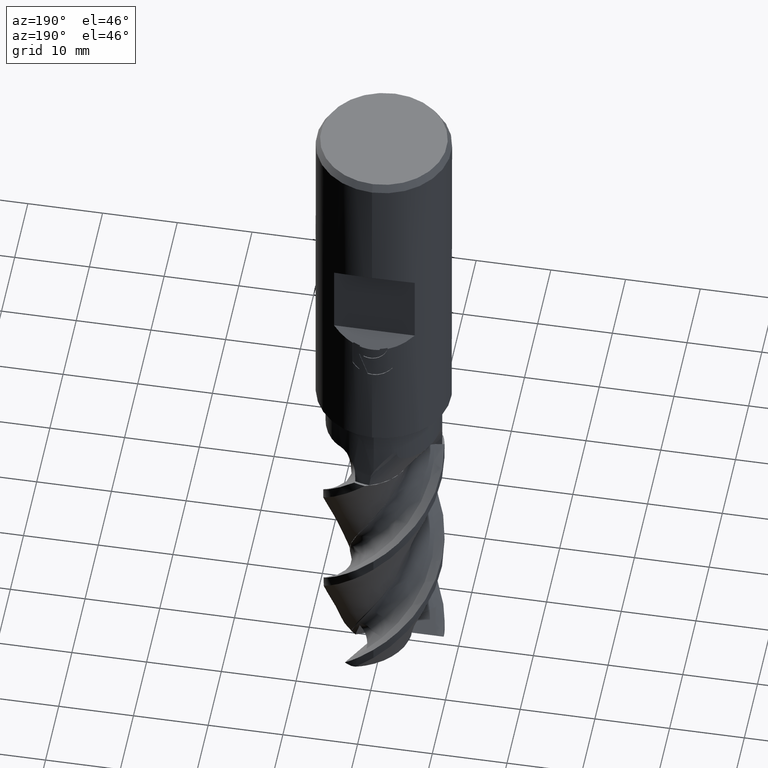
[diagram: clean part render]
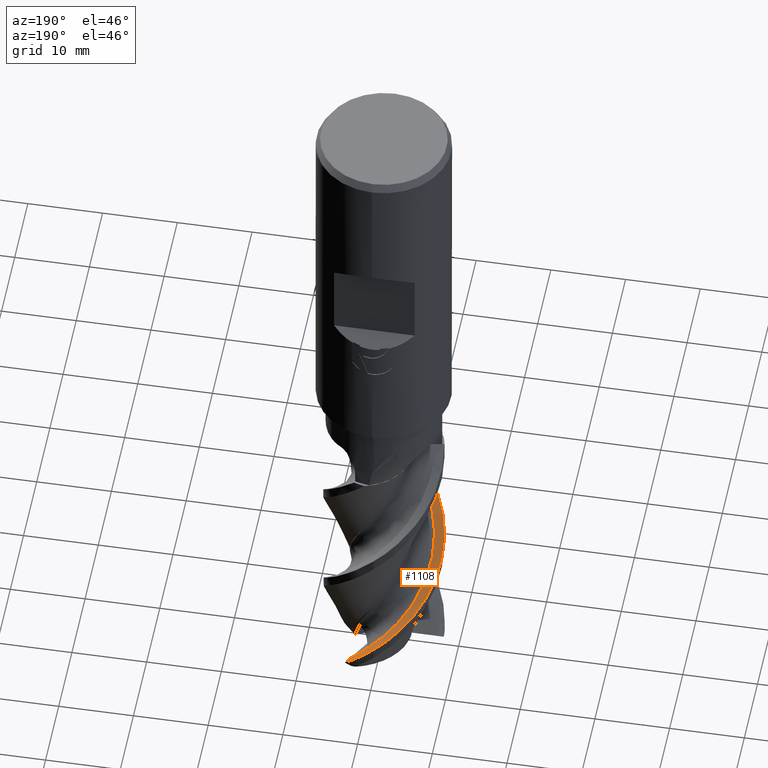
[diagram: same view with one face highlighted and labeled with its STEP entity id]
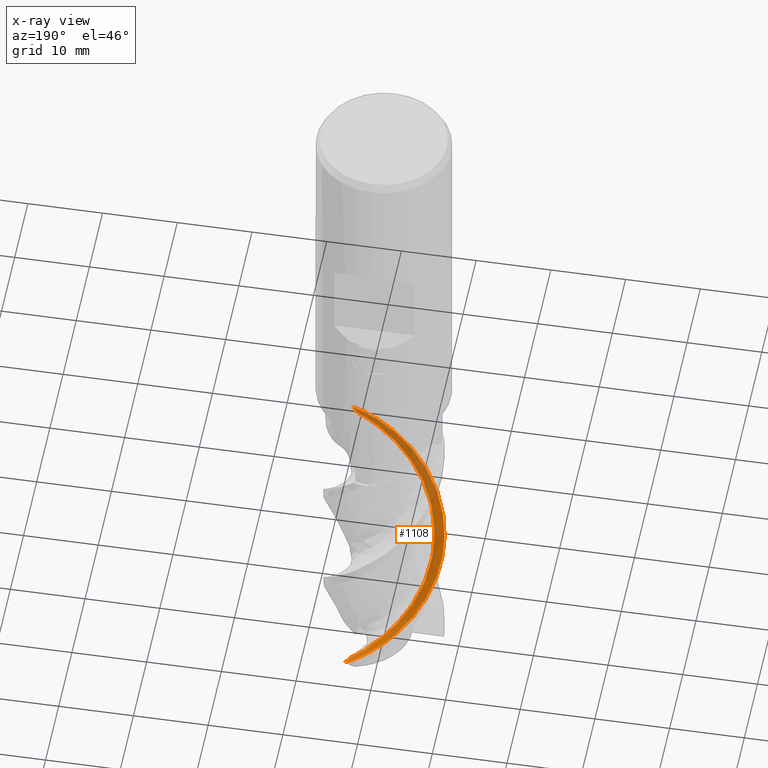
[diagram: x-ray of the same camera — body ghosted, the highlighted face saturated]
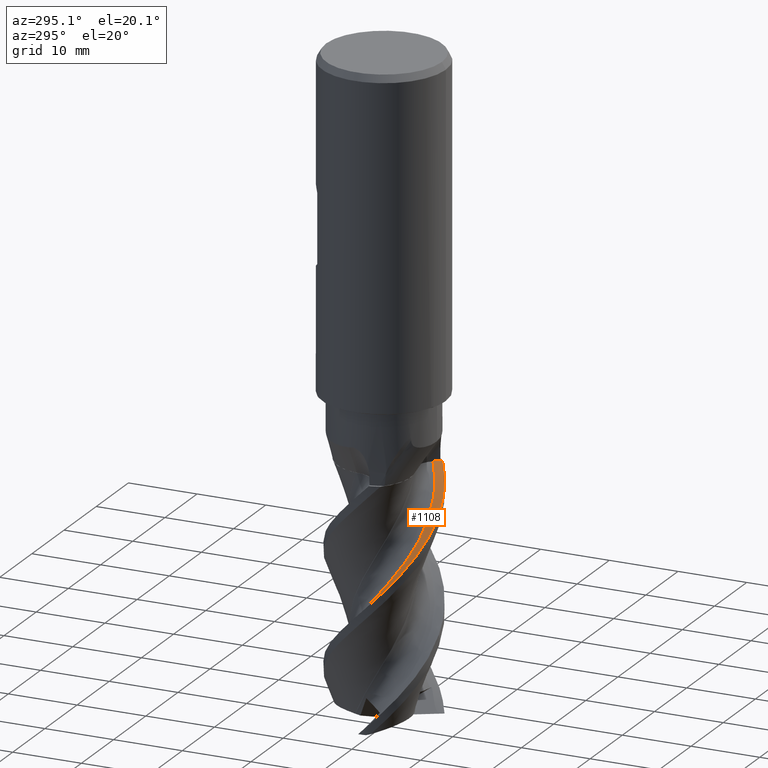
[diagram: same view with one face highlighted and labeled with its STEP entity id]
A machine part, auxiliary view. The second image highlights one B-rep face of the part: STEP entity #1108.
The next image is the same camera in x-ray: the body ghosted, the highlighted face saturated — about 36% of this face is hidden behind the body in this view.
A second angle (auxiliary view) of the same face is appended — the face is thin or edge-on in the first view.
In plain terms, the highlighted face is a freeform B-spline surface patch.
Its self-contained STEP definition (entity closure, byte-faithful):
#630=VERTEX_POINT('',#1577);
#640=VERTEX_POINT('',#1588);
#656=EDGE_CURVE('',#1400,#922,#1604,.T.);
#770=EDGE_CURVE('',#630,#640,#1733,.T.);
#784=EDGE_CURVE('',#640,#1032,#1748,.T.);
#922=VERTEX_POINT('',#1894);
#1000=EDGE_CURVE('',#1120,#1388,#1979,.T.);
#1032=VERTEX_POINT('',#2015);
#1078=EDGE_CURVE('',#1032,#1400,#2062,.T.);
#1094=EDGE_CURVE('',#1388,#630,#2079,.T.);
#1108=ADVANCED_FACE('',(#2094),#2095,.T.);
#1120=VERTEX_POINT('',#2108);
#1320=EDGE_CURVE('',#922,#1120,#2327,.T.);
#1388=VERTEX_POINT('',#2401);
#1400=VERTEX_POINT('',#2413);
#1577=CARTESIAN_POINT('',(5.21287245681162,-6.06830789916059,-58.0));
#1588=CARTESIAN_POINT('',(-1.03411050012735E-010,-7.99991616271667,-63.6569508349699));
#1604=B_SPLINE_CURVE_WITH_KNOTS('',3,(#3688,#3689,#3690,#3691,#3692,#3693,#3694,#3695,#3696,#3697,#3698,#3699,#3700,#3701,#3702,#3703,#3704,#3705,#3706,#3707,#3708,#3709,#3710,#3711,#3712,#3713,#3714,#3715),.UNSPECIFIED.,.F.,.F.,(4,2,2,2,2,2,2,2,2,2,2,2,2,4),(0.0,1.67835538516892,2.3566546700699,3.17270671282474,3.71500186051886,3.79494321817266,3.84522547322926,3.891041552546,3.95042247576357,4.07580516751285,4.3836392117366,4.70856670973003,5.27016585362273,6.07155568821283),.UNSPECIFIED.);
#1733=B_SPLINE_CURVE_WITH_KNOTS('',3,(#5427,#5428,#5429,#5430,#5431,#5432,#5433,#5434,#5435,#5436,#5437,#5438,#5439,#5440,#5441,#5442,#5443,#5444,#5445,#5446,#5447,#5448,#5449,#5450,#5451,#5452,#5453,#5454,#5455,#5456,#5457,#5458,#5459,#5460,#5461,#5462,#5463,#5464,#5465,#5466,#5467,#5468,#5469,#5470,#5471,#5472,#5473,#5474,#5475,#5476,#5477,#5478,#5479,#5480,#5481,#5482),.UNSPECIFIED.,.F.,.F.,(4,2,2,2,2,2,2,2,2,2,2,2,2,2,2,2,2,2,2,2,2,2,2,2,2,2,2,4),(0.0,0.772038852733028,2.26277068045556,3.75850817420948,6.84197586290785,8.48412515882789,10.2599528205792,11.1546704780016,12.0039494147489,13.167610437912,13.5957750828951,14.466805618371,15.2986539952214,17.4739681601708,18.9030155020527,20.397441263458,21.9245275325108,23.4605335775949,24.9469417560208,28.0462084924273,28.8150537425443,30.2992869692693,33.1166060031483,34.3274682192292,35.6979305971694,38.6270104183647,40.1010453101161,41.5871134167108),.UNSPECIFIED.);
#1748=B_SPLINE_CURVE_WITH_KNOTS('',3,(#5568,#5569,#5570,#5571,#5572,#5573,#5574,#5575,#5576,#5577,#5578,#5579,#5580,#5581,#5582,#5583,#5584,#5585,#5586,#5587,#5588,#5589,#5590,#5591,#5592,#5593,#5594,#5595,#5596,#5597,#5598,#5599,#5600,#5601,#5602,#5603,#5604,#5605,#5606,#5607,#5608,#5609,#5610,#5611,#5612,#5613,#5614,#5615,#5616,#5617,#5618,#5619,#5620,#5621,#5622,#5623),.UNSPECIFIED.,.F.,.F.,(4,2,2,2,2,2,2,2,2,2,2,2,2,2,2,2,2,2,2,2,2,2,2,2,2,2,2,4),(0.0,0.772038852733028,2.26277068045556,3.75850817420948,6.84197586290785,8.48412515882789,10.2599528205792,11.1546704780016,12.0039494147489,13.167610437912,13.5957750828951,14.466805618371,15.2986539952214,17.4739681601708,18.9030155020527,20.397441263458,21.9245275325108,23.4605335775949,24.9469417560208,28.0462084924273,28.8150537425443,30.2992869692693,33.1166060031483,34.3274682192292,35.6979305971694,38.6270104183647,40.1010453101161,41.5871134167108),.UNSPECIFIED.);
#1894=CARTESIAN_POINT('',(1.1541401435588,6.87987760508861,-90.1223507154939));
#1979=B_SPLINE_CURVE_WITH_KNOTS('',3,(#6680,#6681,#6682,#6683,#6684,#6685,#6686,#6687,#6688,#6689,#6690,#6691,#6692,#6693,#6694,#6695,#6696,#6697,#6698,#6699,#6700,#6701,#6702,#6703,#6704,#6705,#6706,#6707,#6708,#6709,#6710,#6711,#6712,#6713,#6714,#6715,#6716,#6717,#6718,#6719,#6720,#6721,#6722,#6723,#6724,#6725,#6726,#6727,#6728,#6729,#6730,#6731,#6732,#6733,#6734,#6735),.UNSPECIFIED.,.F.,.F.,(4,1,1,2,1,2,1,2,1,1,1,2,1,2,1,2,1,2,1,2,1,2,1,2,1,2,1,2,1,2,1,2,1,2,1,2,1,4),(0.0,1.05208028823285,1.57812043234927,2.10416057646569,3.15624086469854,4.20832115293138,6.31248172939707,8.41664230586276,9.46872259409561,10.5208028823285,11.5728831705613,12.6249634587941,14.7291240352598,16.8332846117255,18.9374451881912,21.0416057646569,23.1457663411226,25.2499269175883,27.354087494054,29.4582480705197,31.5624086469854,33.666569223451,35.7707297999167,37.8748903763824,39.9790509528481,42.0832115293138,44.1873721057795,46.2915326822452,48.3956932587109,50.4998538351766,52.6040144116423,54.7081749881079,56.8123355645736,58.9164961410393,61.020656717505,63.1248172939707,65.2289778704364,67.3331384469021),.UNSPECIFIED.);
#2015=CARTESIAN_POINT('',(-2.9487581551055E-014,7.99998796921893,-88.7892266244435));
#2062=B_SPLINE_CURVE_WITH_KNOTS('',3,(#7398,#7399,#7400,#7401,#7402,#7403,#7404,#7405,#7406,#7407,#7408,#7409,#7410,#7411,#7412,#7413,#7414,#7415,#7416,#7417,#7418,#7419,#7420,#7421,#7422,#7423,#7424,#7425,#7426,#7427,#7428,#7429,#7430,#7431,#7432,#7433,#7434,#7435,#7436,#7437,#7438,#7439,#7440,#7441,#7442,#7443,#7444,#7445,#7446,#7447,#7448,#7449,#7450,#7451,#7452,#7453),.UNSPECIFIED.,.F.,.F.,(4,2,2,2,2,2,2,2,2,2,2,2,2,2,2,2,2,2,2,2,2,2,2,2,2,2,2,4),(0.0,0.772038852733028,2.26277068045556,3.75850817420948,6.84197586290785,8.48412515882789,10.2599528205792,11.1546704780016,12.0039494147489,13.167610437912,13.5957750828951,14.466805618371,15.2986539952214,17.4739681601708,18.9030155020527,20.397441263458,21.9245275325108,23.4605335775949,24.9469417560208,28.0462084924273,28.8150537425443,30.2992869692693,33.1166060031483,34.3274682192292,35.6979305971694,38.6270104183647,40.1010453101161,41.5871134167108),.UNSPECIFIED.);
#2079=B_SPLINE_CURVE_WITH_KNOTS('',3,(#7482,#7483,#7484,#7485,#7486,#7487),.UNSPECIFIED.,.F.,.F.,(4,2,4),(0.0,0.813333286227644,1.62666657246357),.UNSPECIFIED.);
#2094=FACE_OUTER_BOUND('',#7550,.T.);
#2095=B_SPLINE_SURFACE_WITH_KNOTS('',3,3,((#7551,#7552,#7553,#7554,#7555,#7556,#7557,#7558,#7559,#7560,#7561,#7562,#7563,#7564,#7565,#7566,#7567,#7568,#7569,#7570,#7571,#7572,#7573,#7574,#7575,#7576,#7577,#7578,#7579,#7580,#7581,#7582,#7583,#7584,#7585,#7586,#7587,#7588,#7589,#7590,#7591,#7592,#7593,#7594,#7595,#7596,#7597,#7598,#7599,#7600,#7601,#7602,#7603,#7604,#7605,#7606,#7607,#7608,#7609,#7610,#7611,#7612,#7613,#7614,#7615,#7616,#7617,#7618,#7619,#7620,#7621,#7622,#7623),(#7624,#7625,#7626,#7627,#7628,#7629,#7630,#7631,#7632,#7633,#7634,#7635,#7636,#7637,#7638,#7639,#7640,#7641,#7642,#7643,#7644,#7645,#7646,#7647,#7648,#7649,#7650,#7651,#7652,#7653,#7654,#7655,#7656,#7657,#7658,#7659,#7660,#7661,#7662,#7663,#7664,#7665,#7666,#7667,#7668,#7669,#7670,#7671,#7672,#7673,#7674,#7675,#7676,#7677,#7678,#7679,#7680,#7681,#7682,#7683,#7684,#7685,#7686,#7687,#7688,#7689,#7690,#7691,#7692,#7693,#7694,#7695,#7696),(#7697,#7698,#7699,#7700,#7701,#7702,#7703,#7704,#7705,#7706,#7707,#7708,#7709,#7710,#7711,#7712,#7713,#7714,#7715,#7716,#7717,#7718,#7719,#7720,#7721,#7722,#7723,#7724,#7725,#7726,#7727,#7728,#7729,#7730,#7731,#7732,#7733,#7734,#7735,#7736,#7737,#7738,#7739,#7740,#7741,#7742,#7743,#7744,#7745,#7746,#7747,#7748,#7749,#7750,#7751,#7752,#7753,#7754,#7755,#7756,#7757,#7758,#7759,#7760,#7761,#7762,#7763,#7764,#7765,#7766,#7767,#7768,#7769),(#7770,#7771,#7772,#7773,#7774,#7775,#7776,#7777,#7778,#7779,#7780,#7781,#7782,#7783,#7784,#7785,#7786,#7787,#7788,#7789,#7790,#7791,#7792,#7793,#7794,#7795,#7796,#7797,#7798,#7799,#7800,#7801,#7802,#7803,#7804,#7805,#7806,#7807,#7808,#7809,#7810,#7811,#7812,#7813,#7814,#7815,#7816,#7817,#7818,#7819,#7820,#7821,#7822,#7823,#7824,#7825,#7826,#7827,#7828,#7829,#7830,#7831,#7832,#7833,#7834,#7835,#7836,#7837,#7838,#7839,#7840,#7841,#7842)),.UNSPECIFIED.,.F.,.F.,.F.,(4,4),(4,1,1,2,1,2,1,1,2,1,1,2,1,1,2,1,1,1,2,1,1,2,1,1,2,1,1,1,2,1,1,2,1,1,2,1,1,1,2,1,1,2,1,1,2,1,1,1,2,1,1,2,1,1,4),(-2.66453525910038E-015,1.62666666666667),(0.0,1.05208028823285,1.57812043234927,2.10416057646569,3.15624086469854,4.20832115293138,6.31248172939707,7.36456201762992,8.41664230586276,9.46872259409561,11.0468430264449,12.6249634587941,14.2030838911434,15.7812043234927,16.8332846117255,17.8853648999584,18.9374451881912,19.9895254764241,21.0416057646569,22.0936860528897,23.671806485239,25.2499269175883,26.8280473499375,28.4061677822868,29.4582480705197,30.5103283587525,31.5624086469854,32.6144889352182,33.666569223451,34.7186495116839,36.2967699440332,37.8748903763824,39.4530108087317,41.031131241081,42.0832115293138,43.1352918175466,44.1873721057795,45.2394523940123,46.2915326822452,47.343612970478,48.9217334028273,50.4998538351766,52.0779742675258,53.6560946998751,54.7081749881079,55.7602552763408,56.8123355645736,57.8644158528065,58.9164961410393,59.9685764292722,61.5466968616214,63.1248172939707,64.70293772632,66.2810581586692,67.3331384469021),.UNSPECIFIED.);
#2108=CARTESIAN_POINT('',(1.158809729653,6.59390413202232,-90.1830418899599));
#2327=B_SPLINE_CURVE_WITH_KNOTS('',3,(#9245,#9246,#9247,#9248,#9249,#9250),.UNSPECIFIED.,.F.,.F.,(4,2,4),(0.0,0.840603293433527,1.68484594407021),.UNSPECIFIED.);
#2401=CARTESIAN_POINT('',(4.35693640078114,-5.0830219495712,-58.0));
#2413=CARTESIAN_POINT('',(3.99025440754666,6.93382061405489,-92.9681683335498));
#3688=CARTESIAN_POINT('',(4.16292513913367,7.2053985141836,-92.9835449078489));
#3689=CARTESIAN_POINT('',(3.86700828204585,6.73108475339664,-92.9624266453463));
#3690=CARTESIAN_POINT('',(3.69381694825055,6.4906645841033,-92.9281862229429));
#3691=CARTESIAN_POINT('',(3.49506378671298,6.30323199335899,-92.836828384556));
#3692=CARTESIAN_POINT('',(3.44070327341712,6.2645199663556,-92.8044546086754));
#3693=CARTESIAN_POINT('',(3.31721271910897,6.20570297847088,-92.7137718357228));
#3694=CARTESIAN_POINT('',(3.24639314065133,6.19056655649715,-92.6508247343057));
#3695=CARTESIAN_POINT('',(3.10925581404169,6.18753343666497,-92.5134681754428));
#3696=CARTESIAN_POINT('',(2.92427565325677,6.19383983085888,-92.322073498125));
#3697=CARTESIAN_POINT('',(2.67992652296489,6.27137130366069,-92.028527830998));
#3698=CARTESIAN_POINT('',(2.64853969627333,6.28222907351468,-91.9902927518187));
#3699=CARTESIAN_POINT('',(2.598442925189,6.30050597507132,-91.928708301374));
#3700=CARTESIAN_POINT('',(2.5791134925711,6.30779273175191,-91.9048082883225));
#3701=CARTESIAN_POINT('',(2.54248226084737,6.32194178174757,-91.8593153153665));
#3702=CARTESIAN_POINT('',(2.52501829880595,6.3288363154897,-91.8375388498595));
#3703=CARTESIAN_POINT('',(2.48518097093675,6.34482625203715,-91.7877096049805));
#3704=CARTESIAN_POINT('',(2.46263745809814,6.35406840785383,-91.7593978311182));
#3705=CARTESIAN_POINT('',(2.39314110225659,6.38297464739032,-91.6718751548589));
#3706=CARTESIAN_POINT('',(2.34445689908999,6.40383328942792,-91.610204618568));
#3707=CARTESIAN_POINT('',(2.18469884830795,6.47296523559024,-91.4074292006788));
#3708=CARTESIAN_POINT('',(2.0560326754733,6.52989917127943,-91.2433783048335));
#3709=CARTESIAN_POINT('',(1.77948411261176,6.64742824372244,-90.8936249296246));
#3710=CARTESIAN_POINT('',(1.6431916162499,6.70294203024698,-90.7226719838824));
#3711=CARTESIAN_POINT('',(1.25384843556218,6.8503232003522,-90.2409082830239));
#3712=CARTESIAN_POINT('',(1.00812814058398,6.93138999569969,-89.9438909533161));
#3713=CARTESIAN_POINT('',(0.387238302607882,7.10019786296531,-89.2145875802002));
#3714=CARTESIAN_POINT('',(0.0147454799016312,7.1721784880227,-88.7942920508133));
#3715=CARTESIAN_POINT('',(-0.37154686110601,7.21595011336617,-88.3765957082315));
#5427=CARTESIAN_POINT('',(5.21287245681161,-6.0683078991606,-58.0));
#5428=CARTESIAN_POINT('',(5.07461420348401,-6.1870768880101,-58.1816746891805));
#5429=CARTESIAN_POINT('',(4.93181919450846,-6.30153223722073,-58.3627758454504));
#5430=CARTESIAN_POINT('',(4.50040776259153,-6.62348386405689,-58.8911325221385));
#5431=CARTESIAN_POINT('',(4.20281166598624,-6.81653972458409,-59.2367434570634));
#5432=CARTESIAN_POINT('',(3.57056734552407,-7.16804008567893,-59.9594092558823));
#5433=CARTESIAN_POINT('',(3.2434723093854,-7.32173336295843,-60.3240979884889));
#5434=CARTESIAN_POINT('',(2.2175963641665,-7.72209083434428,-61.4397738932901));
#5435=CARTESIAN_POINT('',(1.48539506143808,-7.89715058456038,-62.1965772008083));
#5436=CARTESIAN_POINT('',(0.330363504131069,-8.003247024313,-63.3274144834511));
#5437=CARTESIAN_POINT('',(-0.231634571805196,-8.02561708327625,-63.8828640598434));
#5438=CARTESIAN_POINT('',(-1.64254237700218,-7.86417060153799,-65.3192488999623));
#5439=CARTESIAN_POINT('',(-2.36591256961914,-7.6786330222183,-66.0738828742407));
#5440=CARTESIAN_POINT('',(-3.40600724703285,-7.2484573147421,-67.1824739921492));
#5441=CARTESIAN_POINT('',(-3.74175193525708,-7.08120588308232,-67.5461768571065));
#5442=CARTESIAN_POINT('',(-4.38152265326105,-6.70314024777973,-68.2878660342584));
#5443=CARTESIAN_POINT('',(-4.67902523383861,-6.4988146111824,-68.6518503565657));
#5444=CARTESIAN_POINT('',(-5.34683020445345,-5.97096981610873,-69.5141407845249));
#5445=CARTESIAN_POINT('',(-5.705433290114,-5.62964771887398,-70.0147996742046));
#5446=CARTESIAN_POINT('',(-6.15113608894304,-5.11818358860029,-70.6918407661981));
#5447=CARTESIAN_POINT('',(-6.26671617867258,-4.97604796832046,-70.8734001731296));
#5448=CARTESIAN_POINT('',(-6.60347265108036,-4.53133867937444,-71.421837323282));
#5449=CARTESIAN_POINT('',(-6.80756371669994,-4.21901189845677,-71.7845195431684));
#5450=CARTESIAN_POINT('',(-7.16800876447135,-3.57071553532728,-72.5256401461329));
#5451=CARTESIAN_POINT('',(-7.3217313295745,-3.24357244075584,-72.8904204147805));
#5452=CARTESIAN_POINT('',(-7.79456273616454,-2.03200316282841,-74.2081070343657));
#5453=CARTESIAN_POINT('',(-7.91727554160246,-1.26690322656766,-74.976853567706));
#5454=CARTESIAN_POINT('',(-7.99873846146683,-0.379702032907552,-75.8453926822159));
#5455=CARTESIAN_POINT('',(-8.00747510085222,-0.0287932507852192,-76.193185230559));
#5456=CARTESIAN_POINT('',(-7.97905843022135,0.683003881425005,-76.9078037130734));
#5457=CARTESIAN_POINT('',(-7.93974456529791,1.04449364503008,-77.2756005160814));
#5458=CARTESIAN_POINT('',(-7.81146545192826,1.76560212245884,-78.0178226513432));
#5459=CARTESIAN_POINT('',(-7.72120336209989,2.12630493594665,-78.393464641485));
#5460=CARTESIAN_POINT('',(-7.48947553444422,2.83682408845469,-79.1412948257793));
#5461=CARTESIAN_POINT('',(-7.35079740692454,3.17802670713963,-79.5010759194396));
#5462=CARTESIAN_POINT('',(-7.03414183993346,3.82706142057121,-80.2092056396429));
#5463=CARTESIAN_POINT('',(-6.85838396363816,4.13338592851271,-80.5608076429401));
#5464=CARTESIAN_POINT('',(-6.2601563464703,5.03429641869908,-81.6491623752296));
#5465=CARTESIAN_POINT('',(-5.77321781492997,5.58653081576333,-82.3961093382278));
#5466=CARTESIAN_POINT('',(-5.07793236450458,6.18444684808674,-83.310119151131));
#5467=CARTESIAN_POINT('',(-4.935195801889,6.29897933411213,-83.4912197087168));
#5468=CARTESIAN_POINT('',(-4.50401553208408,6.62111370380035,-84.019502229066));
#5469=CARTESIAN_POINT('',(-4.20651012959346,6.81434076727707,-84.3652505333912));
#5470=CARTESIAN_POINT('',(-3.2922202376133,7.32329421072124,-85.4107429178795));
#5471=CARTESIAN_POINT('',(-2.65432074333019,7.57760773557075,-86.1073343076375));
#5472=CARTESIAN_POINT('',(-1.70919699051024,7.82076928205759,-87.0898573012098));
#5473=CARTESIAN_POINT('',(-1.41988040437261,7.87854631908545,-87.3844042733546));
#5474=CARTESIAN_POINT('',(-0.794464802010979,7.96750148371538,-88.0077909761143));
#5475=CARTESIAN_POINT('',(-0.463428758700344,7.99367199480728,-88.3287587001145));
#5476=CARTESIAN_POINT('',(0.594650538175004,8.01036434453721,-89.3796330384049));
#5477=CARTESIAN_POINT('',(1.31047767513729,7.92420917257543,-90.1104953810253));
#5478=CARTESIAN_POINT('',(2.35042512963681,7.65537218939675,-91.1948863382679));
#5479=CARTESIAN_POINT('',(2.69416180287909,7.54147609279439,-91.5570905076442));
#5480=CARTESIAN_POINT('',(3.37048582907388,7.26459901035863,-92.277658155736));
#5481=CARTESIAN_POINT('',(3.69768445643631,7.1038195992089,-92.6309160701171));
#5482=CARTESIAN_POINT('',(4.0179150375871,6.91782904896698,-93.0));
#5568=CARTESIAN_POINT('',(5.21287245681161,-6.0683078991606,-58.0));
#5569=CARTESIAN_POINT('',(5.07461420348401,-6.1870768880101,-58.1816746891805));
#5570=CARTESIAN_POINT('',(4.93181919450846,-6.30153223722073,-58.3627758454504));
#5571=CARTESIAN_POINT('',(4.50040776259153,-6.62348386405689,-58.8911325221385));
#5572=CARTESIAN_POINT('',(4.20281166598624,-6.81653972458409,-59.2367434570634));
#5573=CARTESIAN_POINT('',(3.57056734552407,-7.16804008567893,-59.9594092558823));
#5574=CARTESIAN_POINT('',(3.2434723093854,-7.32173336295843,-60.3240979884889));
#5575=CARTESIAN_POINT('',(2.2175963641665,-7.72209083434428,-61.4397738932901));
#5576=CARTESIAN_POINT('',(1.48539506143808,-7.89715058456038,-62.1965772008083));
#5577=CARTESIAN_POINT('',(0.330363504131069,-8.003247024313,-63.3274144834511));
#5578=CARTESIAN_POINT('',(-0.231634571805196,-8.02561708327625,-63.8828640598434));
#5579=CARTESIAN_POINT('',(-1.64254237700218,-7.86417060153799,-65.3192488999623));
#5580=CARTESIAN_POINT('',(-2.36591256961914,-7.6786330222183,-66.0738828742407));
#5581=CARTESIAN_POINT('',(-3.40600724703285,-7.2484573147421,-67.1824739921492));
#5582=CARTESIAN_POINT('',(-3.74175193525708,-7.08120588308232,-67.5461768571065));
#5583=CARTESIAN_POINT('',(-4.38152265326105,-6.70314024777973,-68.2878660342584));
#5584=CARTESIAN_POINT('',(-4.67902523383861,-6.4988146111824,-68.6518503565657));
#5585=CARTESIAN_POINT('',(-5.34683020445345,-5.97096981610873,-69.5141407845249));
#5586=CARTESIAN_POINT('',(-5.705433290114,-5.62964771887398,-70.0147996742046));
#5587=CARTESIAN_POINT('',(-6.15113608894304,-5.11818358860029,-70.6918407661981));
#5588=CARTESIAN_POINT('',(-6.26671617867258,-4.97604796832046,-70.8734001731296));
#5589=CARTESIAN_POINT('',(-6.60347265108036,-4.53133867937444,-71.421837323282));
#5590=CARTESIAN_POINT('',(-6.80756371669994,-4.21901189845677,-71.7845195431684));
#5591=CARTESIAN_POINT('',(-7.16800876447135,-3.57071553532728,-72.5256401461329));
#5592=CARTESIAN_POINT('',(-7.3217313295745,-3.24357244075584,-72.8904204147805));
#5593=CARTESIAN_POINT('',(-7.79456273616454,-2.03200316282841,-74.2081070343657));
#5594=CARTESIAN_POINT('',(-7.91727554160246,-1.26690322656766,-74.976853567706));
#5595=CARTESIAN_POINT('',(-7.99873846146683,-0.379702032907552,-75.8453926822159));
#5596=CARTESIAN_POINT('',(-8.00747510085222,-0.0287932507852192,-76.193185230559));
#5597=CARTESIAN_POINT('',(-7.97905843022135,0.683003881425005,-76.9078037130734));
#5598=CARTESIAN_POINT('',(-7.93974456529791,1.04449364503008,-77.2756005160814));
#5599=CARTESIAN_POINT('',(-7.81146545192826,1.76560212245884,-78.0178226513432));
#5600=CARTESIAN_POINT('',(-7.72120336209989,2.12630493594665,-78.393464641485));
#5601=CARTESIAN_POINT('',(-7.48947553444422,2.83682408845469,-79.1412948257793));
#5602=CARTESIAN_POINT('',(-7.35079740692454,3.17802670713963,-79.5010759194396));
#5603=CARTESIAN_POINT('',(-7.03414183993346,3.82706142057121,-80.2092056396429));
#5604=CARTESIAN_POINT('',(-6.85838396363816,4.13338592851271,-80.5608076429401));
#5605=CARTESIAN_POINT('',(-6.2601563464703,5.03429641869908,-81.6491623752296));
#5606=CARTESIAN_POINT('',(-5.77321781492997,5.58653081576333,-82.3961093382278));
#5607=CARTESIAN_POINT('',(-5.07793236450458,6.18444684808674,-83.310119151131));
#5608=CARTESIAN_POINT('',(-4.935195801889,6.29897933411213,-83.4912197087168));
#5609=CARTESIAN_POINT('',(-4.50401553208408,6.62111370380035,-84.019502229066));
#5610=CARTESIAN_POINT('',(-4.20651012959346,6.81434076727707,-84.3652505333912));
#5611=CARTESIAN_POINT('',(-3.2922202376133,7.32329421072124,-85.4107429178795));
#5612=CARTESIAN_POINT('',(-2.65432074333019,7.57760773557075,-86.1073343076375));
#5613=CARTESIAN_POINT('',(-1.70919699051024,7.82076928205759,-87.0898573012098));
#5614=CARTESIAN_POINT('',(-1.41988040437261,7.87854631908545,-87.3844042733546));
#5615=CARTESIAN_POINT('',(-0.794464802010979,7.96750148371538,-88.0077909761143));
#5616=CARTESIAN_POINT('',(-0.463428758700344,7.99367199480728,-88.3287587001145));
#5617=CARTESIAN_POINT('',(0.594650538175004,8.01036434453721,-89.3796330384049));
#5618=CARTESIAN_POINT('',(1.31047767513729,7.92420917257543,-90.1104953810253));
#5619=CARTESIAN_POINT('',(2.35042512963681,7.65537218939675,-91.1948863382679));
#5620=CARTESIAN_POINT('',(2.69416180287909,7.54147609279439,-91.5570905076442));
#5621=CARTESIAN_POINT('',(3.37048582907388,7.26459901035863,-92.277658155736));
#5622=CARTESIAN_POINT('',(3.69768445643631,7.1038195992089,-92.6309160701171));
#5623=CARTESIAN_POINT('',(4.0179150375871,6.91782904896698,-93.0));
#6680=CARTESIAN_POINT('',(4.20393343057443,-5.20842152887128,-109.0));
#6681=CARTESIAN_POINT('',(4.2327569364535,-5.18770676173068,-108.651072579115));
#6682=CARTESIAN_POINT('',(4.37210942386088,-5.08115795134762,-108.127524460477));
#6683=CARTESIAN_POINT('',(4.72810084294036,-4.74936733186022,-107.429428629351));
#6684=CARTESIAN_POINT('',(4.95280516145507,-4.509858032656,-107.080456256324));
#6685=CARTESIAN_POINT('',(5.31277601831702,-4.08916229063718,-106.55713254818));
#6686=CARTESIAN_POINT('',(5.71177978250961,-3.53261093701815,-105.859425673904));
#6687=CARTESIAN_POINT('',(5.98773131580511,-3.00629572243662,-105.161585973117));
#6688=CARTESIAN_POINT('',(6.3352587746281,-2.23740279871492,-104.114596902642));
#6689=CARTESIAN_POINT('',(6.66521876447401,-1.16828111023206,-102.71862421018));
#6690=CARTESIAN_POINT('',(6.72252898855741,-0.00156635318938125,-101.322690176022));
#6691=CARTESIAN_POINT('',(6.64024956359397,0.904592384329494,-100.275884146031));
#6692=CARTESIAN_POINT('',(6.54604829549585,1.49151641357964,-99.5780260148535));
#6693=CARTESIAN_POINT('',(6.29826741099838,2.324249585942,-98.5312100898291));
#6694=CARTESIAN_POINT('',(5.94706801753991,3.11563952025638,-97.4843401699208));
#6695=CARTESIAN_POINT('',(5.6408314287081,3.61820626390876,-96.786401149683));
#6696=CARTESIAN_POINT('',(5.12237394047264,4.35185396637235,-95.7395013984771));
#6697=CARTESIAN_POINT('',(4.32921633669531,5.20245129156445,-94.3436952715741));
#6698=CARTESIAN_POINT('',(3.34860523708186,5.82813958796562,-92.9478102200316));
#6699=CARTESIAN_POINT('',(2.26042962557328,6.32993618000278,-91.5519840884215));
#6700=CARTESIAN_POINT('',(1.14950462425697,6.669606801992,-90.1562051408592));
#6701=CARTESIAN_POINT('',(-0.0115664169324514,6.72168031749608,-88.7603200213329));
#6702=CARTESIAN_POINT('',(-1.20571668238585,6.61243641628123,-87.3644844988753));
#6703=CARTESIAN_POINT('',(-2.3386296185814,6.35112789861651,-85.9687002621039));
#6704=CARTESIAN_POINT('',(-3.37043320609694,5.81557903550243,-84.5728156846214));
#6705=CARTESIAN_POINT('',(-4.34977727086311,5.12418820151481,-83.1769815968081));
#6706=CARTESIAN_POINT('',(-5.20015142038503,4.3317612987463,-81.7811979629785));
#6707=CARTESIAN_POINT('',(-5.82608398216311,3.35225320755387,-80.3853131393637));
#6708=CARTESIAN_POINT('',(-6.32872848418493,2.26387148226729,-78.9894788521544));
#6709=CARTESIAN_POINT('',(-6.66915721031107,1.15244317693621,-77.5936951817152));
#6710=CARTESIAN_POINT('',(-6.72166403464493,-0.00879376187517344,-76.1978105539307));
#6711=CARTESIAN_POINT('',(-6.61297832230562,-1.20267071792945,-74.8019764943249));
#6712=CARTESIAN_POINT('',(-6.35228421286002,-2.33543952575756,-73.4061928355971));
#6713=CARTESIAN_POINT('',(-5.81728801399451,-3.3674963158014,-72.0103080222112));
#6714=CARTESIAN_POINT('',(-5.1263194322842,-4.34727190228128,-70.6144738481807));
#6715=CARTESIAN_POINT('',(-4.33424752532164,-5.19808432191818,-69.2186902821856));
#6716=CARTESIAN_POINT('',(-3.3550306002753,-5.82448338707021,-67.8228055229385));
#6717=CARTESIAN_POINT('',(-2.26690750555854,-6.32764089281304,-66.4269711661075));
#6718=CARTESIAN_POINT('',(-1.1556608896409,-6.6685984195288,-65.0311874305366));
#6719=CARTESIAN_POINT('',(0.00552809584414682,-6.72166682805072,-63.6353027628009));
#6720=CARTESIAN_POINT('',(1.19943290705249,-6.61356518052475,-62.239468670901));
#6721=CARTESIAN_POINT('',(2.3323462222536,-6.35342635758373,-60.8436850347863));
#6722=CARTESIAN_POINT('',(3.36472312009404,-5.8188947299101,-59.447800546078));
#6723=CARTESIAN_POINT('',(4.34487971094194,-5.12835105003213,-58.0519668945337));
#6724=CARTESIAN_POINT('',(5.1960070313355,-4.3367152864327,-56.6561831843414));
#6725=CARTESIAN_POINT('',(5.82282797217715,-3.35790549983897,-55.2602966558325));
#6726=CARTESIAN_POINT('',(6.32652020655281,-2.27003184018005,-53.864459898575));
#6727=CARTESIAN_POINT('',(6.66808437953717,-1.15872368536215,-52.4686773391297));
#6728=CARTESIAN_POINT('',(6.72163240753078,0.00219295021917132,-51.0727995826382));
#6729=CARTESIAN_POINT('',(6.61428558135621,1.19523500689615,-49.6769732124108));
#6730=CARTESIAN_POINT('',(6.3551990374847,2.32776844056418,-48.2811832277958));
#6731=CARTESIAN_POINT('',(5.81991704017335,3.36338864661018,-46.885279083924));
#6732=CARTESIAN_POINT('',(5.12574696877479,4.34835283439447,-45.4894307030925));
#6733=CARTESIAN_POINT('',(4.33234130687143,5.1985941827611,-44.0936746501432));
#6734=CARTESIAN_POINT('',(3.36812564157912,5.81589361727981,-42.6978388415216));
#6735=CARTESIAN_POINT('',(2.83686314856592,6.06418176584996,-41.9999324884485));
#7398=CARTESIAN_POINT('',(5.21287245681161,-6.0683078991606,-58.0));
#7399=CARTESIAN_POINT('',(5.07461420348401,-6.1870768880101,-58.1816746891805));
#7400=CARTESIAN_POINT('',(4.93181919450846,-6.30153223722073,-58.3627758454504));
#7401=CARTESIAN_POINT('',(4.50040776259153,-6.62348386405689,-58.8911325221385));
#7402=CARTESIAN_POINT('',(4.20281166598624,-6.81653972458409,-59.2367434570634));
#7403=CARTESIAN_POINT('',(3.57056734552407,-7.16804008567893,-59.9594092558823));
#7404=CARTESIAN_POINT('',(3.2434723093854,-7.32173336295843,-60.3240979884889));
#7405=CARTESIAN_POINT('',(2.2175963641665,-7.72209083434428,-61.4397738932901));
#7406=CARTESIAN_POINT('',(1.48539506143808,-7.89715058456038,-62.1965772008083));
#7407=CARTESIAN_POINT('',(0.330363504131069,-8.003247024313,-63.3274144834511));
#7408=CARTESIAN_POINT('',(-0.231634571805196,-8.02561708327625,-63.8828640598434));
#7409=CARTESIAN_POINT('',(-1.64254237700218,-7.86417060153799,-65.3192488999623));
#7410=CARTESIAN_POINT('',(-2.36591256961914,-7.6786330222183,-66.0738828742407));
#7411=CARTESIAN_POINT('',(-3.40600724703285,-7.2484573147421,-67.1824739921492));
#7412=CARTESIAN_POINT('',(-3.74175193525708,-7.08120588308232,-67.5461768571065));
#7413=CARTESIAN_POINT('',(-4.38152265326105,-6.70314024777973,-68.2878660342584));
#7414=CARTESIAN_POINT('',(-4.67902523383861,-6.4988146111824,-68.6518503565657));
#7415=CARTESIAN_POINT('',(-5.34683020445345,-5.97096981610873,-69.5141407845249));
#7416=CARTESIAN_POINT('',(-5.705433290114,-5.62964771887398,-70.0147996742046));
#7417=CARTESIAN_POINT('',(-6.15113608894304,-5.11818358860029,-70.6918407661981));
#7418=CARTESIAN_POINT('',(-6.26671617867258,-4.97604796832046,-70.8734001731296));
#7419=CARTESIAN_POINT('',(-6.60347265108036,-4.53133867937444,-71.421837323282));
#7420=CARTESIAN_POINT('',(-6.80756371669994,-4.21901189845677,-71.7845195431684));
#7421=CARTESIAN_POINT('',(-7.16800876447135,-3.57071553532728,-72.5256401461329));
#7422=CARTESIAN_POINT('',(-7.3217313295745,-3.24357244075584,-72.8904204147805));
#7423=CARTESIAN_POINT('',(-7.79456273616454,-2.03200316282841,-74.2081070343657));
#7424=CARTESIAN_POINT('',(-7.91727554160246,-1.26690322656766,-74.976853567706));
#7425=CARTESIAN_POINT('',(-7.99873846146683,-0.379702032907552,-75.8453926822159));
#7426=CARTESIAN_POINT('',(-8.00747510085222,-0.0287932507852192,-76.193185230559));
#7427=CARTESIAN_POINT('',(-7.97905843022135,0.683003881425005,-76.9078037130734));
#7428=CARTESIAN_POINT('',(-7.93974456529791,1.04449364503008,-77.2756005160814));
#7429=CARTESIAN_POINT('',(-7.81146545192826,1.76560212245884,-78.0178226513432));
#7430=CARTESIAN_POINT('',(-7.72120336209989,2.12630493594665,-78.393464641485));
#7431=CARTESIAN_POINT('',(-7.48947553444422,2.83682408845469,-79.1412948257793));
#7432=CARTESIAN_POINT('',(-7.35079740692454,3.17802670713963,-79.5010759194396));
#7433=CARTESIAN_POINT('',(-7.03414183993346,3.82706142057121,-80.2092056396429));
#7434=CARTESIAN_POINT('',(-6.85838396363816,4.13338592851271,-80.5608076429401));
#7435=CARTESIAN_POINT('',(-6.2601563464703,5.03429641869908,-81.6491623752296));
#7436=CARTESIAN_POINT('',(-5.77321781492997,5.58653081576333,-82.3961093382278));
#7437=CARTESIAN_POINT('',(-5.07793236450458,6.18444684808674,-83.310119151131));
#7438=CARTESIAN_POINT('',(-4.935195801889,6.29897933411213,-83.4912197087168));
#7439=CARTESIAN_POINT('',(-4.50401553208408,6.62111370380035,-84.019502229066));
#7440=CARTESIAN_POINT('',(-4.20651012959346,6.81434076727707,-84.3652505333912));
#7441=CARTESIAN_POINT('',(-3.2922202376133,7.32329421072124,-85.4107429178795));
#7442=CARTESIAN_POINT('',(-2.65432074333019,7.57760773557075,-86.1073343076375));
#7443=CARTESIAN_POINT('',(-1.70919699051024,7.82076928205759,-87.0898573012098));
#7444=CARTESIAN_POINT('',(-1.41988040437261,7.87854631908545,-87.3844042733546));
#7445=CARTESIAN_POINT('',(-0.794464802010979,7.96750148371538,-88.0077909761143));
#7446=CARTESIAN_POINT('',(-0.463428758700344,7.99367199480728,-88.3287587001145));
#7447=CARTESIAN_POINT('',(0.594650538175004,8.01036434453721,-89.3796330384049));
#7448=CARTESIAN_POINT('',(1.31047767513729,7.92420917257543,-90.1104953810253));
#7449=CARTESIAN_POINT('',(2.35042512963681,7.65537218939675,-91.1948863382679));
#7450=CARTESIAN_POINT('',(2.69416180287909,7.54147609279439,-91.5570905076442));
#7451=CARTESIAN_POINT('',(3.37048582907388,7.26459901035863,-92.277658155736));
#7452=CARTESIAN_POINT('',(3.69768445643631,7.1038195992089,-92.6309160701171));
#7453=CARTESIAN_POINT('',(4.0179150375871,6.91782904896698,-93.0));
#7482=CARTESIAN_POINT('',(4.35693640085666,-5.0830219495056,-58.0));
#7483=CARTESIAN_POINT('',(4.53473536327305,-5.28768937490017,-58.0));
#7484=CARTESIAN_POINT('',(4.71253411278556,-5.49235698524907,-58.0));
#7485=CARTESIAN_POINT('',(5.06813118600087,-5.90169257585858,-58.0));
#7486=CARTESIAN_POINT('',(5.24592950970382,-6.10636055611944,-58.0));
#7487=CARTESIAN_POINT('',(5.4237276204993,-6.31102872133582,-58.0));
#7550=EDGE_LOOP('',(#11194,#11195,#11196,#11197,#11198,#11199,#11200));
#7551=CARTESIAN_POINT('',(4.20393343065224,-5.20842152880847,-109.0));
#7552=CARTESIAN_POINT('',(4.23275693652741,-5.18770676166302,-108.651072579115));
#7553=CARTESIAN_POINT('',(4.37210942393661,-5.08115795128181,-108.127524460477));
#7554=CARTESIAN_POINT('',(4.72810084301104,-4.74936733178925,-107.429428629351));
#7555=CARTESIAN_POINT('',(4.95280516151967,-4.50985803257967,-107.080456256323));
#7556=CARTESIAN_POINT('',(5.31277601838162,-4.08916229056085,-106.557132548182));
#7557=CARTESIAN_POINT('',(5.71177978256371,-3.53261093693405,-105.859425673903));
#7558=CARTESIAN_POINT('',(5.98773131584174,-3.00629572234036,-105.161585973117));
#7559=CARTESIAN_POINT('',(6.33525877467647,-2.2374027986332,-104.114596902642));
#7560=CARTESIAN_POINT('',(6.58289738975689,-1.43514679349742,-103.067616091563));
#7561=CARTESIAN_POINT('',(6.70785643638812,-0.293928569636825,-101.671676265843));
#7562=CARTESIAN_POINT('',(6.69510251355991,0.300486559416439,-100.973754832692));
#7563=CARTESIAN_POINT('',(6.64024956358428,0.904592384429023,-100.275884146031));
#7564=CARTESIAN_POINT('',(6.52239316350876,1.63822193690333,-99.4035620119242));
#7565=CARTESIAN_POINT('',(6.1573443168336,2.73269198666149,-98.0077941670326));
#7566=CARTESIAN_POINT('',(5.72724101002643,3.49593164691526,-96.9608844415506));
#7567=CARTESIAN_POINT('',(5.20878352178296,4.22957934937389,-95.9139846903448));
#7568=CARTESIAN_POINT('',(4.63204422102519,4.89135574830589,-94.86712286023));
#7569=CARTESIAN_POINT('',(3.72313365138299,5.60025633368996,-93.4712677930611));
#7570=CARTESIAN_POINT('',(3.0765613341141,5.95358873602057,-92.5988536871166));
#7571=CARTESIAN_POINT('',(2.53247352835887,6.20448703203039,-91.9009406213365));
#7572=CARTESIAN_POINT('',(1.98206402037714,6.41442703967477,-91.2030425263634));
#7573=CARTESIAN_POINT('',(1.14014379426806,6.61594646328764,-90.1561836461398));
#7574=CARTESIAN_POINT('',(0.279172901273471,6.70805103900616,-89.1092944776357));
#7575=CARTESIAN_POINT('',(-0.310103983394856,6.69436934218698,-88.4113611407185));
#7576=CARTESIAN_POINT('',(-0.90717911612249,6.63974739157079,-87.7134433794897));
#7577=CARTESIAN_POINT('',(-1.63478729002297,6.52300882903816,-86.8410666475891));
#7578=CARTESIAN_POINT('',(-2.72792084729355,6.15960021874624,-85.4452445374619));
#7579=CARTESIAN_POINT('',(-3.4928512142799,5.72915518120304,-84.3983364236448));
#7580=CARTESIAN_POINT('',(-4.22735926284278,5.21061205569778,-83.3514608577848));
#7581=CARTESIAN_POINT('',(-4.88920628621646,4.63423212795009,-82.304617817855));
#7582=CARTESIAN_POINT('',(-5.59803793189182,3.7264443123454,-80.9087712383735));
#7583=CARTESIAN_POINT('',(-5.95174510771185,3.08015777614359,-80.0363545675739));
#7584=CARTESIAN_POINT('',(-6.20306735871885,2.53596691349545,-79.3384374239443));
#7585=CARTESIAN_POINT('',(-6.41341668173791,1.9853794765183,-78.6405360950322));
#7586=CARTESIAN_POINT('',(-6.61543312918818,1.1431471321127,-77.5936746713135));
#7587=CARTESIAN_POINT('',(-6.70793002098006,0.281981542724464,-76.5467848749193));
#7588=CARTESIAN_POINT('',(-6.6944926065557,-0.307263000996561,-75.8488520390293));
#7589=CARTESIAN_POINT('',(-6.64014975037541,-0.904201479007114,-75.1509350092263));
#7590=CARTESIAN_POINT('',(-6.52377662622695,-1.63167711708743,-74.2785589170915));
#7591=CARTESIAN_POINT('',(-6.16097237391855,-2.72481276255957,-72.8827370146228));
#7592=CARTESIAN_POINT('',(-5.73091694123019,-3.48996826419814,-71.8358287504574));
#7593=CARTESIAN_POINT('',(-5.21269050493219,-4.22479995404722,-70.7889531199345));
#7594=CARTESIAN_POINT('',(-4.63658899754623,-4.88697545036678,-69.7421101025711));
#7595=CARTESIAN_POINT('',(-3.7291134747392,-5.59625951520559,-68.3462636066179));
#7596=CARTESIAN_POINT('',(-3.08299982650651,-5.95027276355046,-67.4738469337307));
#7597=CARTESIAN_POINT('',(-2.53893827914524,-6.20185151641554,-66.7759297553153));
#7598=CARTESIAN_POINT('',(-1.98846073898097,-6.41246165262781,-66.0780283924999));
#7599=CARTESIAN_POINT('',(-1.14633991018838,-6.61488044536308,-65.0311669249328));
#7600=CARTESIAN_POINT('',(-0.285234848840057,-6.70779221260719,-63.9842770935829));
#7601=CARTESIAN_POINT('',(0.304004298747719,-6.69464141616198,-63.286344239801));
#7602=CARTESIAN_POINT('',(0.900956704347981,-6.64059059239415,-62.5884271939009));
#7603=CARTESIAN_POINT('',(1.62848610938535,-6.52457414222714,-61.7160510976758));
#7604=CARTESIAN_POINT('',(2.72183584288916,-6.16229155166689,-60.3202293221217));
#7605=CARTESIAN_POINT('',(3.4872426940341,-5.73257676987104,-59.273321339635));
#7606=CARTESIAN_POINT('',(4.22236013716461,-5.21466900995493,-58.2264461009768));
#7607=CARTESIAN_POINT('',(4.88478431662036,-4.63888981162777,-57.1796031066553));
#7608=CARTESIAN_POINT('',(5.59443611603714,-3.73184328219077,-55.7837554505026));
#7609=CARTESIAN_POINT('',(5.94875103081807,-3.08593708483271,-54.9113374665181));
#7610=CARTESIAN_POINT('',(6.20059714799472,-2.54200025500427,-54.2134190878894));
#7611=CARTESIAN_POINT('',(6.41150004956199,-1.99157253668992,-53.5155173987248));
#7612=CARTESIAN_POINT('',(6.61433887832597,-1.1494657860333,-52.4686579197799));
#7613=CARTESIAN_POINT('',(6.70764530020367,-0.288497112654104,-51.4217721618497));
#7614=CARTESIAN_POINT('',(6.69479570097947,0.300453464485528,-50.7238429900814));
#7615=CARTESIAN_POINT('',(6.64112228788827,0.896974492828869,-50.0259298049677));
#7616=CARTESIAN_POINT('',(6.5256396625372,1.62409126946751,-49.153554224442));
#7617=CARTESIAN_POINT('',(6.16396104073514,2.71833309655499,-47.7577199302463));
#7618=CARTESIAN_POINT('',(5.73314578119439,3.48650917016705,-46.7107980362827));
#7619=CARTESIAN_POINT('',(5.21251822763747,4.22523231100031,-45.6639117507338));
#7620=CARTESIAN_POINT('',(4.63504278952862,4.88819534958129,-44.6170814123994));
#7621=CARTESIAN_POINT('',(3.7357773248589,5.59101736818607,-43.2212801062469));
#7622=CARTESIAN_POINT('',(3.10249439498355,5.94003769161416,-42.3488856649851));
#7623=CARTESIAN_POINT('',(2.83686314847504,6.06418176589169,-41.9999324884485));
#7624=CARTESIAN_POINT('',(4.54449111892311,-5.63035209090042,-109.0));
#7625=CARTESIAN_POINT('',(4.57727496297019,-5.60644079196478,-108.651074028407));
#7626=CARTESIAN_POINT('',(4.72948923293091,-5.48959411084353,-108.127517763497));
#7627=CARTESIAN_POINT('',(5.1146737327372,-5.13011094451481,-107.429409546405));
#7628=CARTESIAN_POINT('',(5.35723023843616,-4.87132570946616,-107.080436483398));
#7629=CARTESIAN_POINT('',(5.74551883374283,-4.41717476646187,-106.557121363338));
#7630=CARTESIAN_POINT('',(6.17610525104455,-3.81607720173584,-105.859429781292));
#7631=CARTESIAN_POINT('',(6.47411639418364,-3.24704099381842,-105.16159544748));
#7632=CARTESIAN_POINT('',(6.8494742250013,-2.41539557511194,-104.114597966259));
#7633=CARTESIAN_POINT('',(7.11680729532164,-1.54765296350353,-103.067609489712));
#7634=CARTESIAN_POINT('',(7.25125455840307,-0.313766318101079,-101.671662110724));
#7635=CARTESIAN_POINT('',(7.23714326472088,0.328686879986934,-100.973740487893));
#7636=CARTESIAN_POINT('',(7.17754909696931,0.98148394076147,-100.275873111486));
#7637=CARTESIAN_POINT('',(7.04977770649256,1.77436148573839,-99.4035564515514));
#7638=CARTESIAN_POINT('',(6.6545013889126,2.95744052535335,-98.0077934009542));
#7639=CARTESIAN_POINT('',(6.18910935730971,3.7822869991965,-96.9608811263214));
#7640=CARTESIAN_POINT('',(5.62837969190201,4.57492017211217,-95.9139796524327));
#7641=CARTESIAN_POINT('',(5.00456099773699,5.29000148166316,-94.8671188128078));
#7642=CARTESIAN_POINT('',(4.02149477441847,6.05591425976165,-93.4712621575987));
#7643=CARTESIAN_POINT('',(3.32240366757025,6.43748144508859,-92.5988469219524));
#7644=CARTESIAN_POINT('',(2.73423723491476,6.70835369944684,-91.9009339912847));
#7645=CARTESIAN_POINT('',(2.13916963041305,6.93498901180725,-91.2030374068249));
#7646=CARTESIAN_POINT('',(1.22884673031586,7.15238697063079,-90.1561796465829));
#7647=CARTESIAN_POINT('',(0.297989676725221,7.25147911858266,-89.1092895005191));
#7648=CARTESIAN_POINT('',(-0.338967671483067,7.23636400241279,-88.4113550662194));
#7649=CARTESIAN_POINT('',(-0.984235403879584,7.1770120660893,-87.7134371698782));
#7650=CARTESIAN_POINT('',(-1.77066342377744,7.05043677756094,-86.8410619418978));
#7651=CARTESIAN_POINT('',(-2.9523076972859,6.65692670134245,-85.4452405924618));
#7652=CARTESIAN_POINT('',(-3.77896272208476,6.1911765579875,-84.3983302057872));
#7653=CARTESIAN_POINT('',(-4.57251685414824,5.6303611010916,-83.3514546399272));
#7654=CARTESIAN_POINT('',(-5.28767509941776,5.00693151928495,-82.3046139529857));
#7655=CARTESIAN_POINT('',(-6.05351975559456,4.02507065962531,-80.9087665289108));
#7656=CARTESIAN_POINT('',(-6.43549281925718,3.32628626266536,-80.0363483444091));
#7657=CARTESIAN_POINT('',(-6.70682272262792,2.73800963185197,-79.3384312007796));
#7658=CARTESIAN_POINT('',(-6.93389967951469,2.14275161195221,-78.6405310096722));
#7659=CARTESIAN_POINT('',(-7.15183421209649,1.23209465447048,-77.5936705992375));
#7660=CARTESIAN_POINT('',(-7.25135035718695,0.301029275520861,-76.5467797271946));
#7661=CARTESIAN_POINT('',(-7.23649938839472,-0.335893360285464,-75.8488459582393));
#7662=CARTESIAN_POINT('',(-7.17744893970662,-0.981014818033885,-75.1509286582116));
#7663=CARTESIAN_POINT('',(-7.05126839911588,-1.76730124027226,-74.2785542822051));
#7664=CARTESIAN_POINT('',(-6.65841103523069,-2.94894966079875,-72.8827332978107));
#7665=CARTESIAN_POINT('',(-6.19308183276642,-3.77584818702069,-71.8358223306151));
#7666=CARTESIAN_POINT('',(-5.63260897477469,-4.56975178099959,-70.7889471054293));
#7667=CARTESIAN_POINT('',(-5.0094805581998,-5.28526482969141,-69.7421059821075));
#7668=CARTESIAN_POINT('',(-4.02795734488515,-6.05159868072852,-68.3462588027142));
#7669=CARTESIAN_POINT('',(-3.32935957442157,-6.43390270269553,-67.4738407152085));
#7670=CARTESIAN_POINT('',(-2.7412225291767,-6.70550994245669,-66.775923536793));
#7671=CARTESIAN_POINT('',(-2.14608305117224,-6.93286888899536,-66.0780233085075));
#7672=CARTESIAN_POINT('',(-1.23554629145776,-7.15123849663453,-65.0311629192283));
#7673=CARTESIAN_POINT('',(-0.304546015371475,-7.25120319286881,-63.984272009841));
#7674=CARTESIAN_POINT('',(0.332371096956159,-7.23666205304224,-63.2863380172334));
#7675=CARTESIAN_POINT('',(0.977507766082291,-7.17792716959247,-62.5884209713333));
#7676=CARTESIAN_POINT('',(1.76385258137949,-7.05213215708933,-61.7160463484986));
#7677=CARTESIAN_POINT('',(2.94573237243237,-6.65983878335552,-60.3202253912467));
#7678=CARTESIAN_POINT('',(3.772902456137,-6.19487792378694,-59.2733151586768));
#7679=CARTESIAN_POINT('',(4.56711479312325,-5.63474952766025,-58.2264399200185));
#7680=CARTESIAN_POINT('',(5.28289713940341,-5.01196918412425,-57.1795992860643));
#7681=CARTESIAN_POINT('',(6.04962940788003,-4.03090866017729,-55.78375073251));
#7682=CARTESIAN_POINT('',(6.43225963781145,-3.33253486920458,-54.9113310778983));
#7683=CARTESIAN_POINT('',(6.70415580918894,-2.74453269781301,-54.2134126992696));
#7684=CARTESIAN_POINT('',(6.93183094955172,-2.14944779687378,-53.5155119918648));
#7685=CARTESIAN_POINT('',(7.15065447567951,-1.23892729304449,-52.4686537110755));
#7686=CARTESIAN_POINT('',(7.25104607752982,-0.308073486227731,-51.4217672430993));
#7687=CARTESIAN_POINT('',(7.23683043508386,0.328534987061245,-50.7238372362961));
#7688=CARTESIAN_POINT('',(7.1785029550737,0.973210487571563,-50.0259243214072));
#7689=CARTESIAN_POINT('',(7.05328369617872,1.75911535793118,-49.1535503974469));
#7690=CARTESIAN_POINT('',(6.66164308053766,2.94195622930567,-47.7577161416753));
#7691=CARTESIAN_POINT('',(6.19550480100441,3.7720958729121,-46.7107909301593));
#7692=CARTESIAN_POINT('',(5.63246143943373,4.57017120244121,-45.663903428599));
#7693=CARTESIAN_POINT('',(5.0078628084989,5.28652431849129,-44.6170763006195));
#7694=CARTESIAN_POINT('',(4.03514822866252,6.04593160331293,-43.2212760643275));
#7695=CARTESIAN_POINT('',(3.35031465715373,6.42289724442815,-42.3488807798124));
#7696=CARTESIAN_POINT('',(3.06311133125377,6.55694610919838,-41.9999276032759));
#7697=CARTESIAN_POINT('',(4.88504880720125,-6.05228265300065,-109.0));
#7698=CARTESIAN_POINT('',(4.92179295457272,-6.02517478073514,-108.651075477335));
#7699=CARTESIAN_POINT('',(5.08686907810201,-5.89803031040056,-108.1275110664));
#7700=CARTESIAN_POINT('',(5.50124661149162,-5.51085454306506,-107.429390462072));
#7701=CARTESIAN_POINT('',(5.76165533159044,-5.23279340089192,-107.080416711285));
#7702=CARTESIAN_POINT('',(6.17826161664533,-4.74518721329574,-106.55711017687));
#7703=CARTESIAN_POINT('',(6.64043076590917,-4.09954351915576,-105.859433884328));
#7704=CARTESIAN_POINT('',(6.96050141221827,-3.48778618914792,-105.161604932165));
#7705=CARTESIAN_POINT('',(7.36368979593439,-2.59338850385717,-104.114599009249));
#7706=CARTESIAN_POINT('',(7.65071716305505,-1.66015907138905,-103.067602898746));
#7707=CARTESIAN_POINT('',(7.79465272253404,-0.333604054966933,-101.671647992492));
#7708=CARTESIAN_POINT('',(7.77918398444889,0.356887188818672,-100.973726043311));
#7709=CARTESIAN_POINT('',(7.71484866179818,1.05837550882788,-100.275862176704));
#7710=CARTESIAN_POINT('',(7.57716220866546,1.91050101081262,-99.4035508131919));
#7711=CARTESIAN_POINT('',(7.15165847854276,3.18218908574833,-98.0077925761168));
#7712=CARTESIAN_POINT('',(6.65097777271233,4.0686424084584,-96.9608778179481));
#7713=CARTESIAN_POINT('',(6.04797579394908,4.9202609379059,-95.9139746076694));
#7714=CARTESIAN_POINT('',(5.37707781794068,5.68864724822209,-94.867114742881));
#7715=CARTESIAN_POINT('',(4.31985595779548,6.51157224832948,-93.4712566776974));
#7716=CARTESIAN_POINT('',(3.56824595945171,6.92137410512243,-92.5988399851994));
#7717=CARTESIAN_POINT('',(2.9360009830503,7.21222041592369,-91.9009275327962));
#7718=CARTESIAN_POINT('',(2.29627522559241,7.45555096108224,-91.2030321920678));
#7719=CARTESIAN_POINT('',(1.31754963827432,7.68882745338002,-90.1561757628477));
#7720=CARTESIAN_POINT('',(0.316806448572347,7.79490720007655,-89.1092845636603));
#7721=CARTESIAN_POINT('',(-0.367831364215818,7.778358655499,-88.4113489300805));
#7722=CARTESIAN_POINT('',(-1.06129168698488,7.71427674777552,-87.7134310219086));
#7723=CARTESIAN_POINT('',(-1.90653957141386,7.57786472014664,-86.8410571992899));
#7724=CARTESIAN_POINT('',(-3.17669456261512,7.15425321303819,-85.4452368166106));
#7725=CARTESIAN_POINT('',(-4.06507425134913,6.65319794341446,-84.3983239790725));
#7726=CARTESIAN_POINT('',(-4.9176744240055,6.05011013785483,-83.351448430892));
#7727=CARTESIAN_POINT('',(-5.68614392299998,5.37963094270336,-82.3046101158431));
#7728=CARTESIAN_POINT('',(-6.50900157779542,4.32369701882798,-80.9087617080363));
#7729=CARTESIAN_POINT('',(-6.91924052701443,3.57241472908979,-80.0363421941314));
#7730=CARTESIAN_POINT('',(-7.21057809034738,2.94005237031543,-79.3384249047493));
#7731=CARTESIAN_POINT('',(-7.45438266824481,2.30012379100199,-78.6405259618097));
#7732=CARTESIAN_POINT('',(-7.6882352903551,1.32104215839016,-77.5936664426623));
#7733=CARTESIAN_POINT('',(-7.79477069961077,0.320076965657436,-76.5467747170795));
#7734=CARTESIAN_POINT('',(-7.77850617219428,-0.364523741717252,-75.8488396000288));
#7735=CARTESIAN_POINT('',(-7.7147481270967,-1.05782813491353,-75.1509225845289));
#7736=CARTESIAN_POINT('',(-7.57876018043271,-1.90292537851453,-74.2785494146248));
#7737=CARTESIAN_POINT('',(-7.15584966447962,-3.1730865516945,-72.8827293630616));
#7738=CARTESIAN_POINT('',(-6.65524675939006,-4.06172813591198,-71.8358163149522));
#7739=CARTESIAN_POINT('',(-6.05252740951613,-4.91470358187024,-70.7889406868214));
#7740=CARTESIAN_POINT('',(-5.38237213374014,-5.68355421836675,-69.742102350609));
#7741=CARTESIAN_POINT('',(-4.32680117905731,-6.5069378205288,-68.3462540354795));
#7742=CARTESIAN_POINT('',(-3.57571933620943,-6.91753265564681,-67.4738345052822));
#7743=CARTESIAN_POINT('',(-2.9435067653267,-7.20916835470501,-66.7759173096233));
#7744=CARTESIAN_POINT('',(-2.3037053719485,-7.45327613253983,-66.0780182961651));
#7745=CARTESIAN_POINT('',(-1.3247526831704,-7.68759654778572,-65.0311588290413));
#7746=CARTESIAN_POINT('',(-0.323857159362858,-7.7946141911562,-63.9842668606565));
#7747=CARTESIAN_POINT('',(0.36073785334693,-7.77868265334534,-63.2863317907471));
#7748=CARTESIAN_POINT('',(1.05405886962046,-7.71526378338749,-62.5884147526215));
#7749=CARTESIAN_POINT('',(1.89921902605564,-7.57969015188544,-61.7160415787157));
#7750=CARTESIAN_POINT('',(3.16962886126341,-7.15738592282603,-60.3202214700848));
#7751=CARTESIAN_POINT('',(4.05856228614718,-6.657179160346,-59.2733091283255));
#7752=CARTESIAN_POINT('',(4.91186938119213,-6.05482996274506,-58.2264335884636));
#7753=CARTESIAN_POINT('',(5.6810099967288,-5.38504857663554,-57.1795955506298));
#7754=CARTESIAN_POINT('',(6.50482269342869,-4.32997404920121,-55.7837458828313));
#7755=CARTESIAN_POINT('',(6.91576825043389,-3.579132654779,-54.9113248487216));
#7756=CARTESIAN_POINT('',(7.20771446479102,-2.94706513943337,-54.2134061511889));
#7757=CARTESIAN_POINT('',(7.45216185992001,-2.30732308933005,-53.5155066992824));
#7758=CARTESIAN_POINT('',(7.68697011144696,-1.32838884909095,-52.4686494528854));
#7759=CARTESIAN_POINT('',(7.79444684953935,-0.327649804767645,-51.4217622680711));
#7760=CARTESIAN_POINT('',(7.77886516472325,0.356616462897513,-50.7238315260365));
#7761=CARTESIAN_POINT('',(7.71588362672547,1.04944652902581,-50.0259187943633));
#7762=CARTESIAN_POINT('',(7.58092775371532,1.89413944248878,-49.1535465675613));
#7763=CARTESIAN_POINT('',(7.15932511950192,3.16557936786791,-47.7577123704267));
#7764=CARTESIAN_POINT('',(6.65786386082753,4.05768260528436,-46.7107837690389));
#7765=CARTESIAN_POINT('',(6.0524046112471,4.91511006427788,-45.6638951614896));
#7766=CARTESIAN_POINT('',(5.38068282648961,5.68485327992598,-44.6170705984743));
#7767=CARTESIAN_POINT('',(4.33451912555143,6.50084582390954,-43.2212718446156));
#7768=CARTESIAN_POINT('',(3.59813493761497,6.90575681421357,-42.3488759351424));
#7769=CARTESIAN_POINT('',(3.28935951402927,7.04971045251444,-41.9999227180887));
#7770=CARTESIAN_POINT('',(5.22560649547211,-6.4742132150926,-109.0));
#7771=CARTESIAN_POINT('',(5.26631096958648,-6.44390879855765,-108.651076926758));
#7772=CARTESIAN_POINT('',(5.44424891281162,-6.30646649804058,-108.127504369387));
#7773=CARTESIAN_POINT('',(5.88781952181701,-5.89159818257231,-107.429371380181));
#7774=CARTESIAN_POINT('',(6.16608038729165,-5.59426105149397,-107.08039693836));
#7775=CARTESIAN_POINT('',(6.61100447443708,-5.07319974176565,-106.557098992026));
#7776=CARTESIAN_POINT('',(7.10475623162079,-4.38300975363658,-105.859437983273));
#7777=CARTESIAN_POINT('',(7.44688645366809,-3.72853146869902,-105.161614423417));
#7778=CARTESIAN_POINT('',(7.87790532004338,-2.77138126418982,-104.114600039088));
#7779=CARTESIAN_POINT('',(8.18462701328168,-1.77266525350473,-103.06759630534));
#7780=CARTESIAN_POINT('',(8.33805083797787,-0.353441808735004,-101.671633862707));
#7781=CARTESIAN_POINT('',(8.32122477503653,0.385087541212071,-100.973711664734));
#7782=CARTESIAN_POINT('',(8.25214815575654,1.13526703333742,-100.275851175937));
#7783=CARTESIAN_POINT('',(8.10454678121926,2.04664058351486,-99.4035452443746));
#7784=CARTESIAN_POINT('',(7.6488155540144,3.40693764040445,-98.0077917593713));
#7785=CARTESIAN_POINT('',(7.11284601844554,4.35499768487864,-96.960874553386));
#7786=CARTESIAN_POINT('',(6.46757206561819,5.26560183650518,-95.9139695190901));
#7787=CARTESIAN_POINT('',(5.74959457154651,6.08729294970364,-94.8671106701253));
#7788=CARTESIAN_POINT('',(4.6182170748935,6.96723017503482,-93.4712510929021));
#7789=CARTESIAN_POINT('',(3.81408829037327,7.40526679044059,-92.5988331524789));
#7790=CARTESIAN_POINT('',(3.13776469214078,7.71608710708999,-91.9009209703006));
#7791=CARTESIAN_POINT('',(2.45338084750325,7.97611293194742,-91.2030270049732));
#7792=CARTESIAN_POINT('',(1.40625253869734,8.22526796452506,-90.1561717632908));
#7793=CARTESIAN_POINT('',(0.335623209614581,8.33833525717048,-89.1092796540999));
#7794=CARTESIAN_POINT('',(-0.396695049769441,8.32035333947467,-88.4113427880251));
#7795=CARTESIAN_POINT('',(-1.13834797727657,8.25154139854416,-87.7134248798533));
#7796=CARTESIAN_POINT('',(-2.04241571387503,8.10529269962403,-86.8410524091533));
#7797=CARTESIAN_POINT('',(-3.40108142672361,7.65157970051874,-85.4452329222776));
#7798=CARTESIAN_POINT('',(-4.35118572486692,7.11521928276119,-84.3983177612149));
#7799=CARTESIAN_POINT('',(-5.26283204959803,6.46985922068638,-83.3514422130344));
#7800=CARTESIAN_POINT('',(-6.0846127141294,5.75233031929722,-82.3046062509738));
#7801=CARTESIAN_POINT('',(-6.9644833955607,4.62232336547424,-80.9087569816846));
#7802=CARTESIAN_POINT('',(-7.40298822795213,3.81854320246933,-80.0363359034104));
#7803=CARTESIAN_POINT('',(-7.71433346486408,3.14209510181417,-79.3384187491407));
#7804=CARTESIAN_POINT('',(-7.97486565541396,2.45749591329369,-78.6405208426716));
#7805=CARTESIAN_POINT('',(-8.22463636795959,1.40998967417683,-77.5936625056987));
#7806=CARTESIAN_POINT('',(-8.33819105046181,0.339124730042096,-76.5467696369111));
#7807=CARTESIAN_POINT('',(-8.32051293535262,-0.393154151040457,-75.8488333841264));
#7808=CARTESIAN_POINT('',(-8.2520473351086,-1.134641423906,-75.1509163686266));
#7809=CARTESIAN_POINT('',(-8.10625194063709,-2.03854953758231,-74.2785446784041));
#7810=CARTESIAN_POINT('',(-7.65328832081943,-3.3972234560941,-72.882725443581));
#7811=CARTESIAN_POINT('',(-7.11741169234189,-4.34760808809326,-71.8358100977784));
#7812=CARTESIAN_POINT('',(-6.47244583794304,-5.25965537946388,-70.7889344696476));
#7813=CARTESIAN_POINT('',(-5.75526373083698,-6.08184363321054,-69.7420985341482));
#7814=CARTESIAN_POINT('',(-4.6256450550234,-6.96227701245349,-68.3462493666881));
#7815=CARTESIAN_POINT('',(-3.82207910787434,-7.4011625922573,-67.4738282867599));
#7816=CARTESIAN_POINT('',(-3.1457909916083,-7.71282678328075,-66.775911091101));
#7817=CARTESIAN_POINT('',(-2.46132771319344,-7.97368335980168,-66.0780131446166));
#7818=CARTESIAN_POINT('',(-1.41395907908394,-8.2239545674689,-65.0311547557805));
#7819=CARTESIAN_POINT('',(-0.343168298107896,-8.33802519239844,-63.9842618444707));
#7820=CARTESIAN_POINT('',(0.389104630340101,-8.32070326394115,-63.2863255681795));
#7821=CARTESIAN_POINT('',(1.13060995257004,-8.25260038687026,-62.5884085300539));
#7822=CARTESIAN_POINT('',(2.03458548213832,-8.10724814703429,-61.7160368295385));
#7823=CARTESIAN_POINT('',(3.39352543915701,-7.65493321315743,-60.3202177418783));
#7824=CARTESIAN_POINT('',(4.34422203110655,-7.11948029554302,-59.2733027446988));
#7825=CARTESIAN_POINT('',(5.2566240542943,-6.47491049916925,-58.226427610174));
#7826=CARTESIAN_POINT('',(6.0791228219232,-5.75812796346379,-57.1795917300388));
#7827=CARTESIAN_POINT('',(6.96001595950346,-4.62903941543011,-55.7837411648388));
#7828=CARTESIAN_POINT('',(7.39927687056949,-3.82573042854324,-54.9113184601018));
#7829=CARTESIAN_POINT('',(7.71127311284301,-3.14959759284974,-54.2133997625691));
#7830=CARTESIAN_POINT('',(7.97249275990974,-2.46519834951392,-53.5155013599787));
#7831=CARTESIAN_POINT('',(8.22328569692556,-1.41785035483486,-52.4686453117372));
#7832=CARTESIAN_POINT('',(8.33784761625786,-0.347226165199048,-51.4217573493207));
#7833=CARTESIAN_POINT('',(8.32089993318512,0.384697969796418,-50.7238256371389));
#7834=CARTESIAN_POINT('',(8.2532642595534,1.12568253944532,-50.0259134459152));
#7835=CARTESIAN_POINT('',(8.10857180787982,2.02916351224824,-49.1535426392319));
#7836=CARTESIAN_POINT('',(7.65700716228783,3.38920249692234,-47.75770868319));
#7837=CARTESIAN_POINT('',(7.12022286291314,4.34326928965379,-46.710776460247));
#7838=CARTESIAN_POINT('',(6.47234784076776,5.2600489740944,-45.6638870420234));
#7839=CARTESIAN_POINT('',(5.75350282484008,6.08318221388005,-44.6170651826915));
#7840=CARTESIAN_POINT('',(4.63389004117133,6.95576007128681,-43.2212678026962));
#7841=CARTESIAN_POINT('',(3.84595520508897,7.38861636045645,-42.3488710499697));
#7842=CARTESIAN_POINT('',(3.515607696808,7.54247479582113,-41.999917832916));
#9245=CARTESIAN_POINT('',(1.10446536091188,8.2479892584243,-89.8625970722996));
#9246=CARTESIAN_POINT('',(1.11855866822143,7.97225251679148,-89.9103807851878));
#9247=CARTESIAN_POINT('',(1.13040592478543,7.69633326762935,-89.9607205453789));
#9248=CARTESIAN_POINT('',(1.14881115945941,7.14517800606802,-90.0671628060091));
#9249=CARTESIAN_POINT('',(1.15537957939589,6.86894986244816,-90.1234823084107));
#9250=CARTESIAN_POINT('',(1.15880972960052,6.59390413203084,-90.1830418900166));
#11194=ORIENTED_EDGE('',*,*,#1320,.F.);
#11195=ORIENTED_EDGE('',*,*,#656,.F.);
#11196=ORIENTED_EDGE('',*,*,#1078,.F.);
#11197=ORIENTED_EDGE('',*,*,#784,.F.);
#11198=ORIENTED_EDGE('',*,*,#770,.F.);
#11199=ORIENTED_EDGE('',*,*,#1094,.F.);
#11200=ORIENTED_EDGE('',*,*,#1000,.F.);